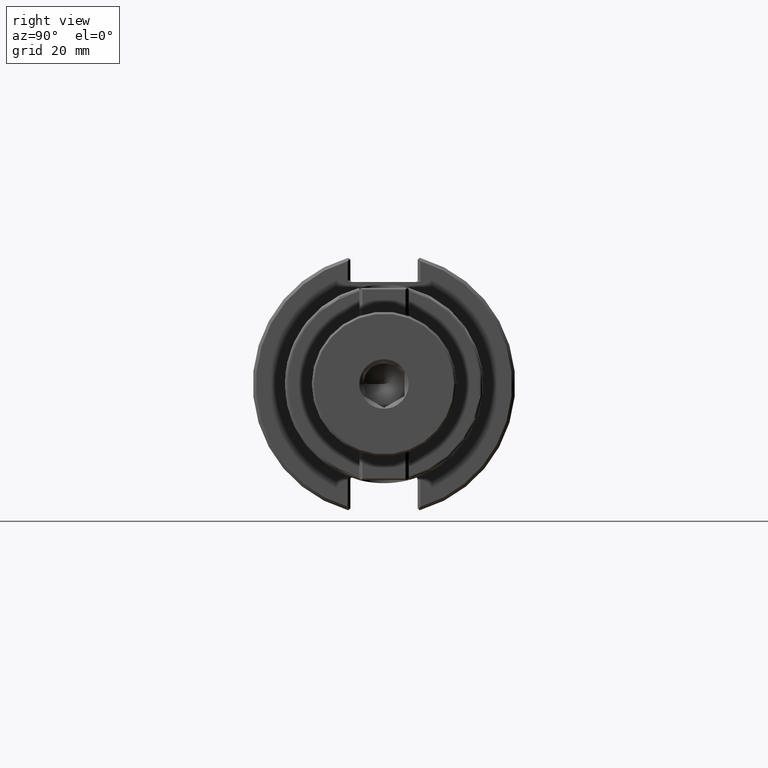
[diagram: clean part render]
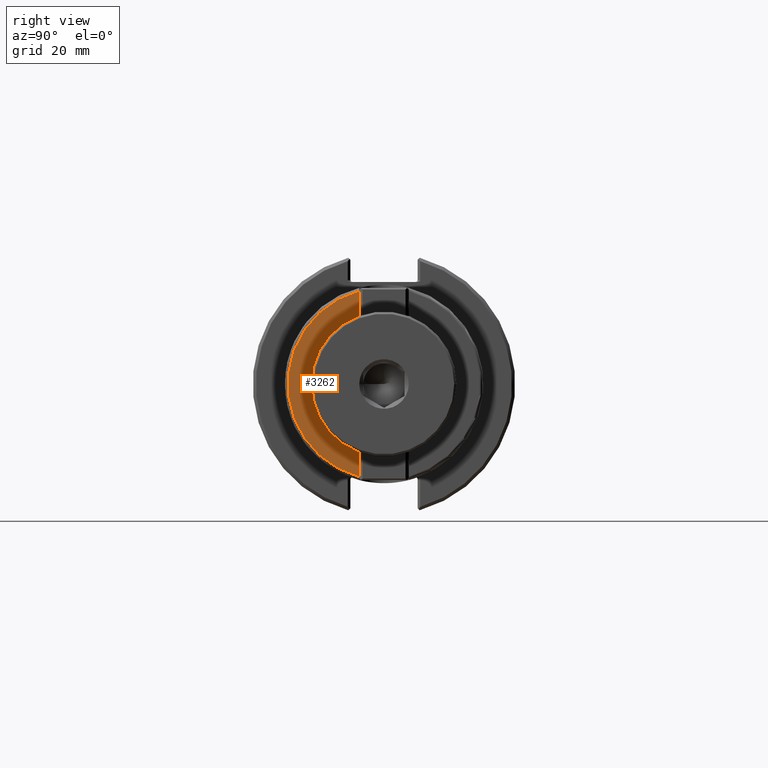
[diagram: same view with one face highlighted and labeled with its STEP entity id]
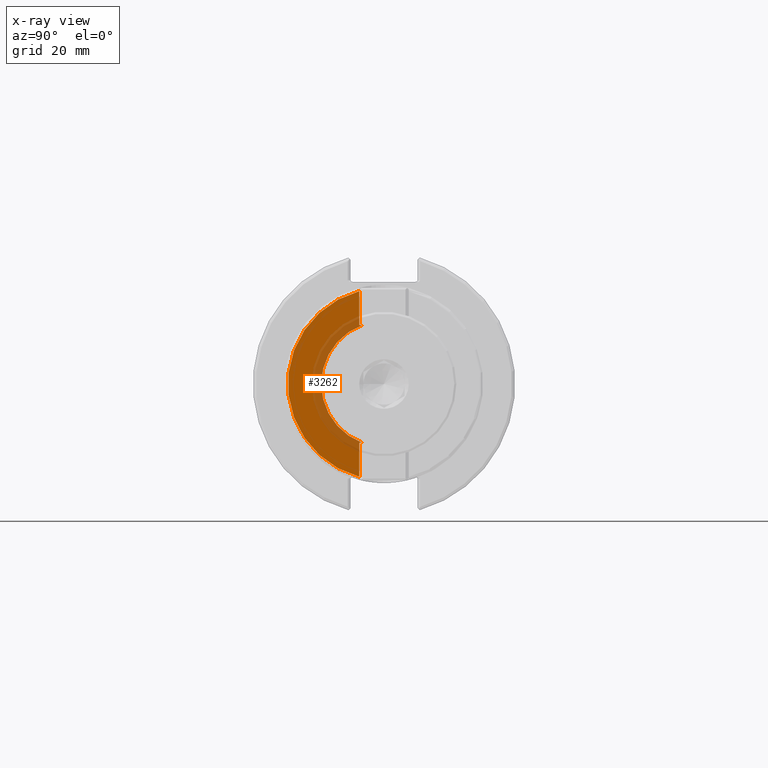
[diagram: x-ray of the same camera — body ghosted, the highlighted face saturated]
A machine part, right view. The second image highlights one B-rep face of the part: STEP entity #3262.
The next image is the same camera in x-ray: the body ghosted, the highlighted face saturated — about 23% of this face is hidden behind the body in this view.
In plain terms, the highlighted planar face has unit normal (1, 0, 0).
Its self-contained STEP definition (entity closure, byte-faithful):
#196=PLANE('',#3620);
#472=FACE_OUTER_BOUND('',#658,.T.);
#658=EDGE_LOOP('',(#2404,#2405,#2406,#2407,#2408,#2409));
#865=LINE('',#5040,#1091);
#871=LINE('',#5081,#1097);
#875=LINE('',#5133,#1101);
#876=LINE('',#5134,#1102);
#1091=VECTOR('',#4057,0.393700787401575);
#1097=VECTOR('',#4067,0.393700787401575);
#1101=VECTOR('',#4091,0.393700787401575);
#1102=VECTOR('',#4092,0.393700787401575);
#1340=CIRCLE('',#3619,0.91488188976378);
#1341=CIRCLE('',#3621,0.597868037431535);
#1497=VERTEX_POINT('',#5037);
#1498=VERTEX_POINT('',#5039);
#1505=VERTEX_POINT('',#5077);
#1513=VERTEX_POINT('',#5117);
#1514=VERTEX_POINT('',#5130);
#1515=VERTEX_POINT('',#5132);
#1832=EDGE_CURVE('',#1498,#1497,#865,.T.);
#1842=EDGE_CURVE('',#1497,#1505,#871,.T.);
#1852=EDGE_CURVE('',#1498,#1513,#1340,.T.);
#1854=EDGE_CURVE('',#1505,#1514,#1341,.T.);
#1855=EDGE_CURVE('',#1514,#1515,#875,.T.);
#1856=EDGE_CURVE('',#1515,#1513,#876,.T.);
#2404=ORIENTED_EDGE('',*,*,#1832,.T.);
#2405=ORIENTED_EDGE('',*,*,#1842,.T.);
#2406=ORIENTED_EDGE('',*,*,#1854,.T.);
#2407=ORIENTED_EDGE('',*,*,#1855,.T.);
#2408=ORIENTED_EDGE('',*,*,#1856,.T.);
#2409=ORIENTED_EDGE('',*,*,#1852,.F.);
#3262=ADVANCED_FACE('',(#472),#196,.T.);
#3619=AXIS2_PLACEMENT_3D('',#5118,#4085,#4086);
#3620=AXIS2_PLACEMENT_3D('',#5129,#4087,#4088);
#3621=AXIS2_PLACEMENT_3D('',#5131,#4089,#4090);
#4057=DIRECTION('',(-2.22163321306733E-32,1.22464679914735E-16,1.));
#4067=DIRECTION('',(-1.81410118788055E-16,1.,-1.22464679914736E-16));
#4085=DIRECTION('center_axis',(-1.,-1.81410118788055E-16,0.));
#4086=DIRECTION('ref_axis',(1.81410118788055E-16,-1.,1.22464679914735E-16));
#4087=DIRECTION('center_axis',(1.,1.81410118788055E-16,0.));
#4088=DIRECTION('ref_axis',(0.,0.,-1.));
#4089=DIRECTION('center_axis',(-1.,-1.81410118788055E-16,0.));
#4090=DIRECTION('ref_axis',(0.,1.,0.));
#4091=DIRECTION('',(1.81410118788055E-16,-1.,3.18870694202117E-31));
#4092=DIRECTION('',(0.,0.,1.));
#5037=CARTESIAN_POINT('',(1.96850393700787,-0.236,-0.561));
#5039=CARTESIAN_POINT('',(1.96850393700787,-0.236,-0.883919041664871));
#5040=CARTESIAN_POINT('',(1.96850393700787,-0.236,-0.2805));
#5077=CARTESIAN_POINT('',(1.96850393700787,-0.206700726128951,-0.561));
#5081=CARTESIAN_POINT('',(1.96850393700787,0.369070472440945,-0.561));
#5117=CARTESIAN_POINT('',(1.96850393700787,-0.236,0.883919041664871));
#5118=CARTESIAN_POINT('Origin',(1.96850393700787,-6.25656080826315E-17,
0.));
#5129=CARTESIAN_POINT('Origin',(1.96850393700787,0.73814094488189,0.));
#5130=CARTESIAN_POINT('',(1.96850393700787,-0.206700726128951,0.561));
#5131=CARTESIAN_POINT('Origin',(1.96850393700787,0.,0.));
#5132=CARTESIAN_POINT('',(1.96850393700787,-0.236,0.561));
#5133=CARTESIAN_POINT('',(1.96850393700787,0.369070472440945,0.561));
#5134=CARTESIAN_POINT('',(1.96850393700787,-0.236,0.2805));